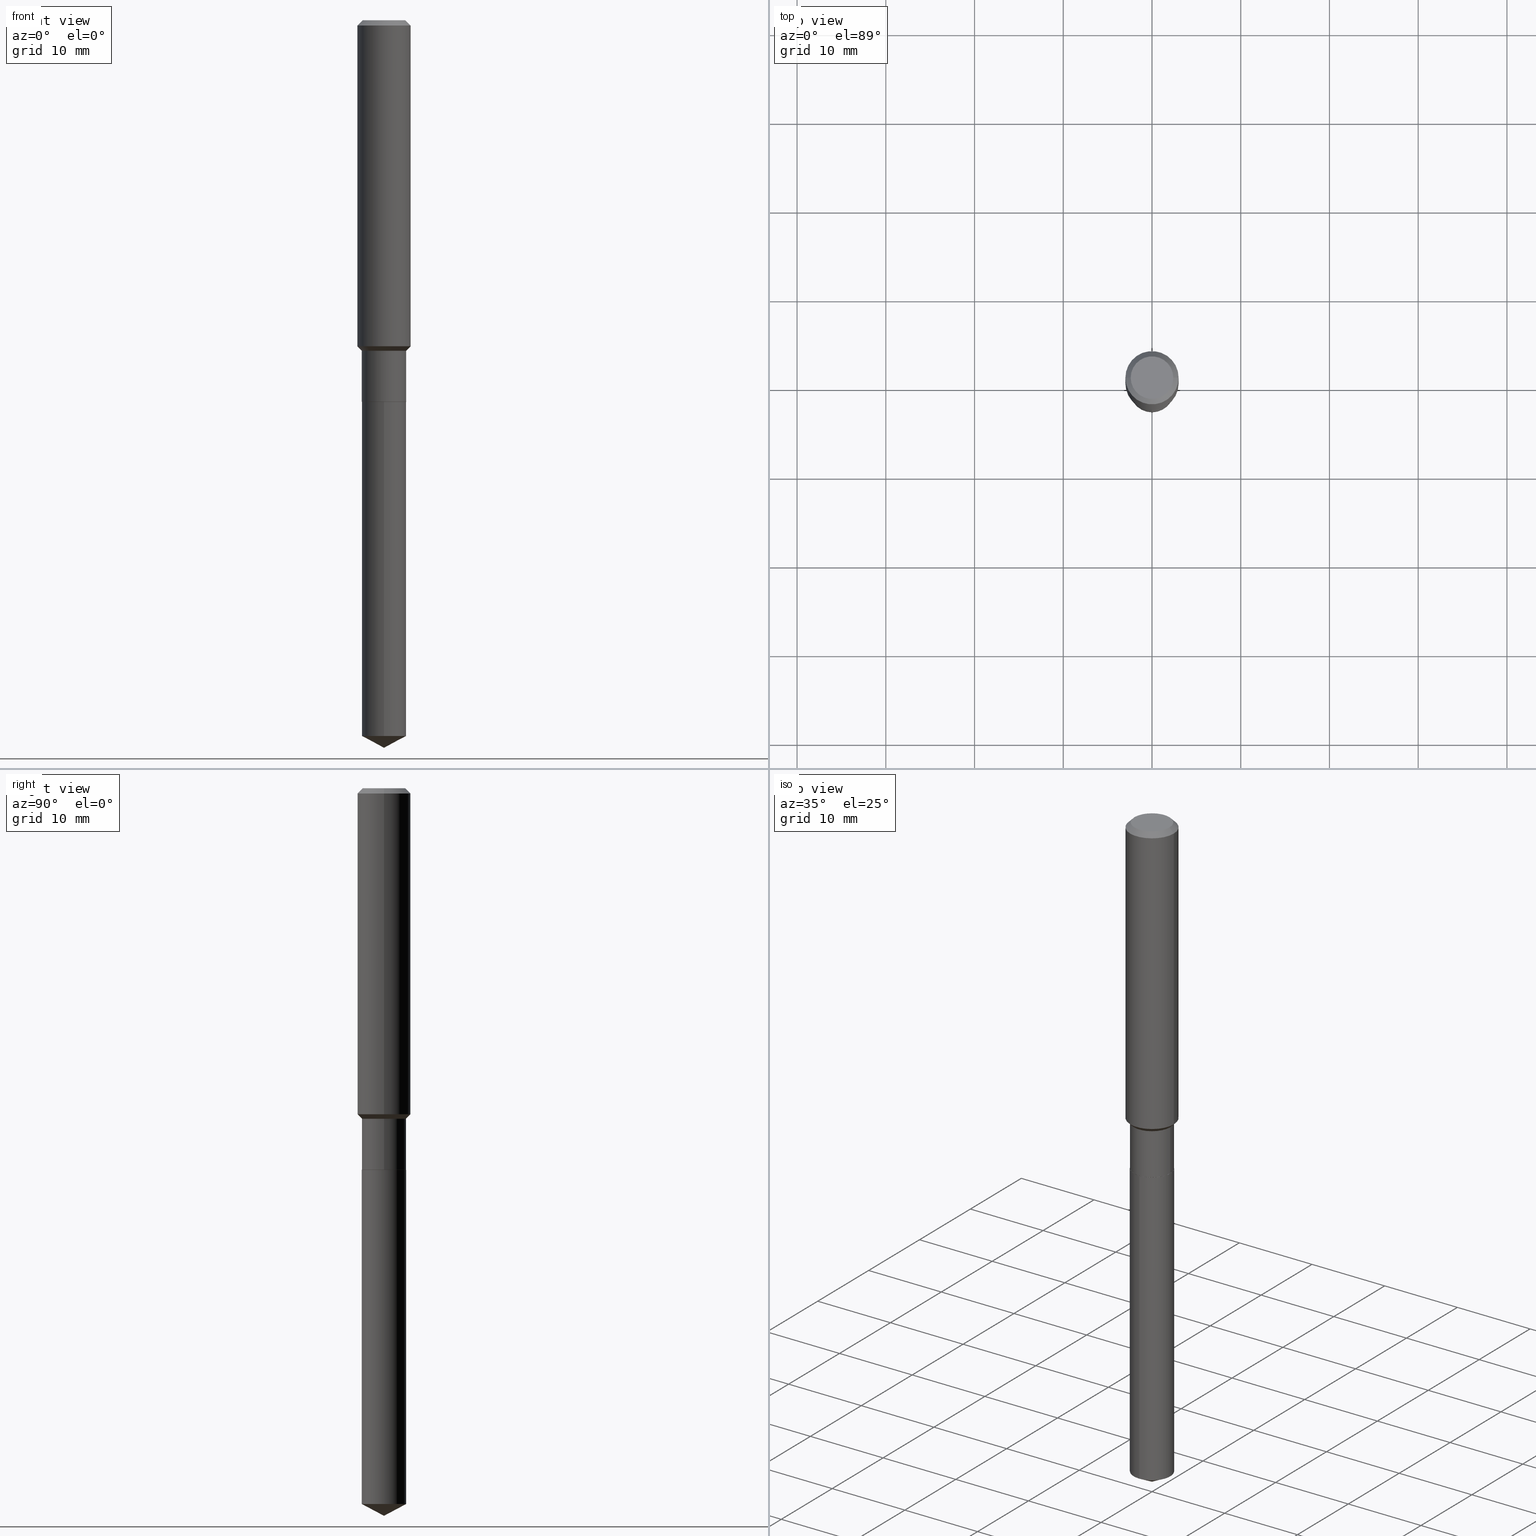
[diagram: canonical four-view strip — front | top / right | iso, engineering-drawing reading convention]
A machine part, canonical four-view strip (front | top / right | iso — engineering-drawing reading convention). The complete STEP part file that produces these views, byte-faithful:
ISO-10303-21;
HEADER;
FILE_DESCRIPTION (( 'STEP AP203' ),
    '1' );
FILE_NAME ('64820.STEP',
    '2024-04-24T19:01:01',
    ( '' ),
    ( '' ),
    'SwSTEP 2.0',
    'SolidWorks 2023',
    '' );
FILE_SCHEMA (( 'CONFIG_CONTROL_DESIGN' ));
ENDSEC;

DATA;
#1 = ORIENTED_EDGE ( 'NONE', *, *, #316, .F. ) ;
#2 = CARTESIAN_POINT ( 'NONE',  ( -6.874726756181714407E-16, -0.09845000000000590779, -1.692899999999999849 ) ) ;
#3 = CYLINDRICAL_SURFACE ( 'NONE', #181, 0.09844999999999999585 ) ;
#4 = AXIS2_PLACEMENT_3D ( 'NONE', #383, #44, #42 ) ;
#5 = ADVANCED_FACE ( 'NONE', ( #288 ), #129, .T. ) ;
#6 = ORIENTED_EDGE ( 'NONE', *, *, #11, .F. ) ;
#7 = COORDINATED_UNIVERSAL_TIME_OFFSET ( 5, 0, .BEHIND. ) ;
#8 = CARTESIAN_POINT ( 'NONE',  ( 7.894676668704987051E-29, -1.127159256643982906E-14, -3.228299999999999947 ) ) ;
#9 = PERSON_AND_ORGANIZATION ( #17, #479 ) ;
#10 = DIRECTION ( 'NONE',  ( -0.7071067811865484609, 7.493145998870357316E-15, 0.7071067811865465735 ) ) ;
#11 = EDGE_CURVE ( 'NONE', #194, #166, #454, .T. ) ;
#12 = DIRECTION ( 'NONE',  ( -6.982962677686265922E-15, -1.000000000000000000, 2.774858297271979165E-15 ) ) ;
#13 = AXIS2_PLACEMENT_3D ( 'NONE', #119, #342, #490 ) ;
#14 = CYLINDRICAL_SURFACE ( 'NONE', #368, 0.09844999999999998197 ) ;
#15 = ADVANCED_FACE ( 'NONE', ( #141 ), #229, .T. ) ;
#16 = EDGE_LOOP ( 'NONE', ( #392, #418, #430, #158 ) ) ;
#17 = PERSON ( 'UNSPECIFIED', 'UNSPECIFIED', 'UNSPECIFIED', ('UNSPECIFIED'), ('UNSPECIFIED'), ('UNSPECIFIED') ) ;
#18 = FACE_OUTER_BOUND ( 'NONE', #406, .T. ) ;
#19 = VERTEX_POINT ( 'NONE', #179 ) ;
#20 = CARTESIAN_POINT ( 'NONE',  ( 4.139934141990818357E-29, -5.910728758527561864E-15, -1.692900000000000071 ) ) ;
#21 = VERTEX_POINT ( 'NONE', #108 ) ;
#22 = CIRCLE ( 'NONE', #247, 0.09844999999999999585 ) ;
#23 = AXIS2_PLACEMENT_3D ( 'NONE', #419, #306, #451 ) ;
#24 = VECTOR ( 'NONE', #388, 39.37007874015748143 ) ;
#25 = DIRECTION ( 'NONE',  ( 1.000000000000000000, -6.982962677686269077E-15, 0.000000000000000000 ) ) ;
#26 = VERTEX_POINT ( 'NONE', #449 ) ;
#27 = CALENDAR_DATE ( 2024, 24, 4 ) ;
#28 = DIRECTION ( 'NONE',  ( -2.445468806185136597E-29, 3.491481338843145583E-15, 1.000000000000000000 ) ) ;
#29 =( LENGTH_UNIT ( ) NAMED_UNIT ( * ) SI_UNIT ( $, .METRE. ) );
#30 = EDGE_LOOP ( 'NONE', ( #136, #175, #6, #124 ) ) ;
#31 = CARTESIAN_POINT ( 'NONE',  ( -6.874726756181350545E-16, -0.09845000000001107032, -3.175953206452927002 ) ) ;
#32 = EDGE_LOOP ( 'NONE', ( #323, #361, #353, #171 ) ) ;
#33 = DIRECTION ( 'NONE',  ( -2.445468806185136597E-29, 3.491481338843145583E-15, 1.000000000000000000 ) ) ;
#34 = CARTESIAN_POINT ( 'NONE',  ( -8.838323765674841593E-28, 1.261888541926225739E-13, 36.14177874015747705 ) ) ;
#35 = DATE_AND_TIME ( #415, #309 ) ;
#36 = EDGE_LOOP ( 'NONE', ( #275, #130, #465, #101 ) ) ;
#37 = EDGE_CURVE ( 'NONE', #194, #151, #369, .T. ) ;
#38 = AXIS2_PLACEMENT_3D ( 'NONE', #104, #251, #106 ) ;
#39 = CIRCLE ( 'NONE', #351, 0.1181000000000001632 ) ;
#40 = DIRECTION ( 'NONE',  ( -2.445468806185136597E-29, 3.491481338843145583E-15, 1.000000000000000000 ) ) ;
#41 = APPROVAL_ROLE ( '' ) ;
#42 = DIRECTION ( 'NONE',  ( 1.000000000000000000, -6.982962677686266711E-15, 4.876176775795936353E-29 ) ) ;
#43 = EDGE_CURVE ( 'NONE', #480, #86, #253, .T. ) ;
#44 = DIRECTION ( 'NONE',  ( -2.445468806185136597E-29, 3.491481338843145583E-15, 1.000000000000000000 ) ) ;
#45 = LINE ( 'NONE', #150, #402 ) ;
#46 = VECTOR ( 'NONE', #139, 39.37007874015748143 ) ;
#47 = AXIS2_PLACEMENT_3D ( 'NONE', #59, #167, #208 ) ;
#48 = APPROVAL_STATUS ( 'not_yet_approved' ) ;
#49 = CARTESIAN_POINT ( 'NONE',  ( -0.09794999999999999540, -5.214752148850543863E-15, -1.692900000000000071 ) ) ;
#50 = CYLINDRICAL_SURFACE ( 'NONE', #478, 0.09844999999999998197 ) ;
#51 = CARTESIAN_POINT ( 'NONE',  ( 3.538226542228964985E-29, -5.051649775105204853E-15, -1.446849999999999969 ) ) ;
#52 = ORIENTED_EDGE ( 'NONE', *, *, #43, .F. ) ;
#53 = AXIS2_PLACEMENT_3D ( 'NONE', #355, #464, #210 ) ;
#54 = DIRECTION ( 'NONE',  ( -2.445468806185136597E-29, 3.491481338843145583E-15, 1.000000000000000000 ) ) ;
#55 = ORIENTED_EDGE ( 'NONE', *, *, #268, .F. ) ;
#56 = DIRECTION ( 'NONE',  ( -2.445468806185136597E-29, 3.491481338843145583E-15, 1.000000000000000000 ) ) ;
#57 = ORIENTED_EDGE ( 'NONE', *, *, #76, .T. ) ;
#58 = ADVANCED_FACE ( 'NONE', ( #258 ), #220, .F. ) ;
#59 = CARTESIAN_POINT ( 'NONE',  ( 2.358133508849003952E-46, -3.366789680499277518E-32, -9.642868896486260050E-18 ) ) ;
#60 = EDGE_LOOP ( 'NONE', ( #259, #241, #114 ) ) ;
#61 = CIRCLE ( 'NONE', #145, 0.09844999999999995421 ) ;
#62 = AXIS2_PLACEMENT_3D ( 'NONE', #71, #332, #188 ) ;
#63 = APPROVAL_ROLE ( '' ) ;
#64 = VERTEX_POINT ( 'NONE', #363 ) ;
#65 = EDGE_CURVE ( 'NONE', #166, #194, #22, .T. ) ;
#66 = ORIENTED_EDGE ( 'NONE', *, *, #341, .F. ) ;
#67 = COORDINATED_UNIVERSAL_TIME_OFFSET ( 5, 0, .BEHIND. ) ;
#68 = VERTEX_POINT ( 'NONE', #178 ) ;
#69 = CLOSED_SHELL ( 'NONE', ( #233, #5, #165, #444, #331 ) ) ;
#70 = CONICAL_SURFACE ( 'NONE', #204, 0.09844999999999995421, 0.7853981633974496113 ) ;
#71 = CARTESIAN_POINT ( 'NONE',  ( 0.000000000000000000, 0.000000000000000000, 0.000000000000000000 ) ) ;
#72 = CARTESIAN_POINT ( 'NONE',  ( -6.874726756181714407E-16, -0.09845000000000590779, -1.692899999999999849 ) ) ;
#73 = EDGE_CURVE ( 'NONE', #290, #403, #137, .T. ) ;
#74 = PERSON_AND_ORGANIZATION_ROLE ( 'creator' ) ;
#75 = ORIENTED_EDGE ( 'NONE', *, *, #316, .T. ) ;
#76 = EDGE_CURVE ( 'NONE', #480, #290, #485, .T. ) ;
#77 = PERSON_AND_ORGANIZATION ( #17, #479 ) ;
#78 = DIRECTION ( 'NONE',  ( 1.000000000000000000, -6.982962677686265922E-15, 4.876176775795935793E-29 ) ) ;
#79 = PERSON_AND_ORGANIZATION ( #17, #479 ) ;
#80 = CONICAL_SURFACE ( 'NONE', #386, 74.04434902938345431, 1.082104136236486047 ) ;
#81 = CC_DESIGN_SECURITY_CLASSIFICATION ( #199, ( #146 ) ) ;
#82 = FACE_OUTER_BOUND ( 'NONE', #356, .T. ) ;
#83 = EDGE_CURVE ( 'NONE', #68, #64, #317, .T. ) ;
#84 = EDGE_CURVE ( 'NONE', #26, #437, #447, .T. ) ;
#85 = CARTESIAN_POINT ( 'NONE',  ( -0.1181000000000000799, 8.391509709326788873E-16, -5.809262341591047988E-30 ) ) ;
#86 = VERTEX_POINT ( 'NONE', #2 ) ;
#87 = CYLINDRICAL_SURFACE ( 'NONE', #4, 0.1181000000000000799 ) ;
#88 = DIRECTION ( 'NONE',  ( -6.982962677686265922E-15, -1.000000000000000000, 2.774858297271979165E-15 ) ) ;
#89 = DIRECTION ( 'NONE',  ( 1.000000000000000000, -6.982962677686269077E-15, 0.000000000000000000 ) ) ;
#90 = CARTESIAN_POINT ( 'NONE',  ( 3.586280004270503451E-29, -5.120257383413473493E-15, -1.466500000000000137 ) ) ;
#91 = ORIENTED_EDGE ( 'NONE', *, *, #334, .T. ) ;
#92 = LINE ( 'NONE', #203, #248 ) ;
#93 = ORIENTED_EDGE ( 'NONE', *, *, #11, .T. ) ;
#94 = AXIS2_PLACEMENT_3D ( 'NONE', #231, #193, #339 ) ;
#95 = CARTESIAN_POINT ( 'NONE',  ( 0.1181000000000000799, -8.246878922347486570E-16, 5.758764772215004644E-30 ) ) ;
#96 = ORIENTED_EDGE ( 'NONE', *, *, #296, .T. ) ;
#97 = CARTESIAN_POINT ( 'NONE',  ( 5.776197320209327532E-31, -8.246878922347559293E-17, -0.02362000000000014088 ) ) ;
#98 = VERTEX_POINT ( 'NONE', #304 ) ;
#99 = CC_DESIGN_DATE_AND_TIME_ASSIGNMENT ( #486, #176, ( #470 ) ) ;
#100 =( NAMED_UNIT ( * ) PLANE_ANGLE_UNIT ( ) SI_UNIT ( $, .RADIAN. ) );
#101 = ORIENTED_EDGE ( 'NONE', *, *, #394, .F. ) ;
#102 = ADVANCED_FACE ( 'NONE', ( #228 ), #172, .T. ) ;
#103 = CIRCLE ( 'NONE', #163, 0.09844999999999999585 ) ;
#104 = CARTESIAN_POINT ( 'NONE',  ( 7.766680586692997852E-29, -1.108880127269587655E-14, -3.175953206452927891 ) ) ;
#105 =( NAMED_UNIT ( * ) SI_UNIT ( $, .STERADIAN. ) SOLID_ANGLE_UNIT ( ) );
#106 = DIRECTION ( 'NONE',  ( -6.982962677686265922E-15, -1.000000000000000000, 5.549716594543958330E-15 ) ) ;
#107 = PERSON_AND_ORGANIZATION ( #17, #479 ) ;
#108 = CARTESIAN_POINT ( 'NONE',  ( 0.09447999999999998066, -7.704367267948738690E-16, -1.928573779296752193E-17 ) ) ;
#109 = AXIS2_PLACEMENT_3D ( 'NONE', #365, #328, #217 ) ;
#110 = AXIS2_PLACEMENT_3D ( 'NONE', #399, #202, #360 ) ;
#111 = EDGE_CURVE ( 'NONE', #21, #98, #144, .T. ) ;
#112 = APPROVAL_STATUS ( 'not_yet_approved' ) ;
#113 = LOCAL_TIME ( 15, 1, 1.000000000000000000, #263 ) ;
#114 = ORIENTED_EDGE ( 'NONE', *, *, #462, .F. ) ;
#115 = ORIENTED_EDGE ( 'NONE', *, *, #76, .F. ) ;
#116 = FACE_OUTER_BOUND ( 'NONE', #60, .T. ) ;
#117 = PERSON_AND_ORGANIZATION_ROLE ( 'design_supplier' ) ;
#118 = CC_DESIGN_APPROVAL ( #424, ( #199 ) ) ;
#119 = CARTESIAN_POINT ( 'NONE',  ( 4.716267017698007905E-46, -6.733579360998555036E-32, -1.928573779297252010E-17 ) ) ;
#120 = CARTESIAN_POINT ( 'NONE',  ( -0.09844999999999999585, -4.815090877279988422E-15, -1.692400000000000126 ) ) ;
#121 = DIRECTION ( 'NONE',  ( 1.000000000000000000, -6.982962677686270655E-15, 0.000000000000000000 ) ) ;
#122 = DIRECTION ( 'NONE',  ( -2.445459427161350318E-29, 3.491494770139028640E-15, 1.000000000000000000 ) ) ;
#123 = CARTESIAN_POINT ( 'NONE',  ( 4.139934141990818357E-29, -5.910728758527561864E-15, -1.692900000000000071 ) ) ;
#124 = ORIENTED_EDGE ( 'NONE', *, *, #149, .F. ) ;
#125 = DIRECTION ( 'NONE',  ( 0.7071067811865459074, -7.319954787623249734E-15, -0.7071067811865491270 ) ) ;
#126 = VERTEX_POINT ( 'NONE', #153 ) ;
#127 = EDGE_CURVE ( 'NONE', #151, #400, #448, .T. ) ;
#128 = DIRECTION ( 'NONE',  ( 1.000000000000000000, -6.982962677686270655E-15, 0.000000000000000000 ) ) ;
#129 = CONICAL_SURFACE ( 'NONE', #180, 74.04434902938345431, 1.082104136236486047 ) ;
#130 = ORIENTED_EDGE ( 'NONE', *, *, #65, .T. ) ;
#131 = AXIS2_PLACEMENT_3D ( 'NONE', #133, #314, #12 ) ;
#132 = CONICAL_SURFACE ( 'NONE', #212, 0.09794999999999999540, 0.7853981633975507526 ) ;
#133 = CARTESIAN_POINT ( 'NONE',  ( 4.139934141990818357E-29, -5.910728758527561864E-15, -1.692900000000000071 ) ) ;
#134 = ORIENTED_EDGE ( 'NONE', *, *, #213, .F. ) ;
#135 = CARTESIAN_POINT ( 'NONE',  ( 3.586280004270503451E-29, -5.120257383413473493E-15, -1.466500000000000137 ) ) ;
#136 = ORIENTED_EDGE ( 'NONE', *, *, #389, .T. ) ;
#137 = LINE ( 'NONE', #442, #46 ) ;
#138 = VECTOR ( 'NONE', #272, 39.37007874015748143 ) ;
#139 = DIRECTION ( 'NONE',  ( -2.445459427161350599E-29, 3.491494770139028640E-15, 1.000000000000000000 ) ) ;
#140 = DIRECTION ( 'NONE',  ( -6.982962677686265922E-15, -1.000000000000000000, 2.774858297271979165E-15 ) ) ;
#141 = FACE_OUTER_BOUND ( 'NONE', #30, .T. ) ;
#142 = CARTESIAN_POINT ( 'NONE',  ( 4.139934141990818357E-29, -5.910728758527561864E-15, -1.692900000000000071 ) ) ;
#143 = DIRECTION ( 'NONE',  ( -2.445459427161350599E-29, 3.491494770139028640E-15, 1.000000000000000000 ) ) ;
#144 = CIRCLE ( 'NONE', #13, 0.09447999999999998066 ) ;
#145 = AXIS2_PLACEMENT_3D ( 'NONE', #90, #285, #25 ) ;
#146 = PRODUCT_DEFINITION_FORMATION_WITH_SPECIFIED_SOURCE ( 'ANY', '', #297, .NOT_KNOWN. ) ;
#147 = DIRECTION ( 'NONE',  ( -2.445459427161350318E-29, 3.491494770139028640E-15, 1.000000000000000000 ) ) ;
#148 = CARTESIAN_POINT ( 'NONE',  ( 4.139934141990818357E-29, -5.910728758527561864E-15, -1.692900000000000071 ) ) ;
#149 = EDGE_CURVE ( 'NONE', #64, #194, #45, .T. ) ;
#150 = CARTESIAN_POINT ( 'NONE',  ( 0.09794999999999999540, -6.594709952806931417E-15, -1.692900000000000071 ) ) ;
#151 = VERTEX_POINT ( 'NONE', #458 ) ;
#152 = DATE_TIME_ROLE ( 'classification_date' ) ;
#153 = CARTESIAN_POINT ( 'NONE',  ( 0.1181000000000001632, -5.876337667339954694E-15, -1.446849999999999969 ) ) ;
#154 = ADVANCED_FACE ( 'NONE', ( #82 ), #264, .T. ) ;
#155 = VECTOR ( 'NONE', #429, 39.37007874015748143 ) ;
#156 = APPROVAL_PERSON_ORGANIZATION ( #325, #291, #476 ) ;
#157 = LINE ( 'NONE', #49, #345 ) ;
#158 = ORIENTED_EDGE ( 'NONE', *, *, #65, .F. ) ;
#159 = CALENDAR_DATE ( 2024, 24, 4 ) ;
#160 = DIRECTION ( 'NONE',  ( -6.982962677686266711E-15, -1.000000000000000000, 3.541896320645564813E-15 ) ) ;
#161 = LINE ( 'NONE', #307, #138 ) ;
#162 = DIRECTION ( 'NONE',  ( -2.445468806185136597E-29, 3.491481338843145583E-15, 1.000000000000000000 ) ) ;
#163 = AXIS2_PLACEMENT_3D ( 'NONE', #216, #257, #214 ) ;
#164 = CARTESIAN_POINT ( 'NONE',  ( 0.000000000000000000, 0.000000000000000000, 0.000000000000000000 ) ) ;
#165 = ADVANCED_FACE ( 'NONE', ( #116 ), #80, .T. ) ;
#166 = VERTEX_POINT ( 'NONE', #120 ) ;
#167 = DIRECTION ( 'NONE',  ( 2.438088387897960049E-29, -3.491481338843145188E-15, -1.000000000000000000 ) ) ;
#168 = VERTEX_POINT ( 'NONE', #384 ) ;
#169 = CARTESIAN_POINT ( 'NONE',  ( 0.1180999999999999966, -8.926936027602933910E-16, -0.02362000000000014088 ) ) ;
#170 = AXIS2_PLACEMENT_3D ( 'NONE', #196, #40, #301 ) ;
#171 = ORIENTED_EDGE ( 'NONE', *, *, #84, .F. ) ;
#172 = CONICAL_SURFACE ( 'NONE', #94, 0.1180999999999999966, 0.7853981633974460586 ) ;
#173 = DIRECTION ( 'NONE',  ( 1.000000000000000000, -6.982962677686269077E-15, 0.000000000000000000 ) ) ;
#174 = CC_DESIGN_DATE_AND_TIME_ASSIGNMENT ( #300, #152, ( #199 ) ) ;
#175 = ORIENTED_EDGE ( 'NONE', *, *, #237, .T. ) ;
#176 = DATE_TIME_ROLE ( 'creation_date' ) ;
#177 = EDGE_CURVE ( 'NONE', #19, #480, #423, .T. ) ;
#178 = CARTESIAN_POINT ( 'NONE',  ( -0.09794999999999999540, -5.212102921676432662E-15, -1.692900000000000071 ) ) ;
#179 = CARTESIAN_POINT ( 'NONE',  ( 7.894676668704987051E-29, -1.127159256643982591E-14, -3.228299999999999947 ) ) ;
#180 = AXIS2_PLACEMENT_3D ( 'NONE', #34, #333, #482 ) ;
#181 = AXIS2_PLACEMENT_3D ( 'NONE', #200, #425, #88 ) ;
#182 = APPROVAL_PERSON_ORGANIZATION ( #107, #385, #63 ) ;
#183 = APPROVAL_DATE_TIME ( #35, #385 ) ;
#184 = ADVANCED_FACE ( 'NONE', ( #380 ), #87, .T. ) ;
#185 = ORIENTED_EDGE ( 'NONE', *, *, #393, .F. ) ;
#186 = UNCERTAINTY_MEASURE_WITH_UNIT (LENGTH_MEASURE( 1.000000000000000082E-05 ), #250, 'distance_accuracy_value', 'NONE');
#187 = ORIENTED_EDGE ( 'NONE', *, *, #73, .F. ) ;
#188 = DIRECTION ( 'NONE',  ( 1.000000000000000000, 0.000000000000000000, 0.000000000000000000 ) ) ;
#189 = DIRECTION ( 'NONE',  ( -2.445468806185136597E-29, 3.491481338843145583E-15, 1.000000000000000000 ) ) ;
#190 = CLOSED_SHELL ( 'NONE', ( #15, #102, #154, #265, #266, #373, #409, #184, #481, #302, #58, #474 ) ) ;
#191 = VECTOR ( 'NONE', #125, 39.37007874015748143 ) ;
#192 = CC_DESIGN_APPROVAL ( #385, ( #470 ) ) ;
#193 = DIRECTION ( 'NONE',  ( 2.445468806185136597E-29, -3.491481338843145583E-15, -1.000000000000000000 ) ) ;
#194 = VERTEX_POINT ( 'NONE', #197 ) ;
#195 = COORDINATED_UNIVERSAL_TIME_OFFSET ( 5, 0, .BEHIND. ) ;
#196 = CARTESIAN_POINT ( 'NONE',  ( 5.776197320209327532E-31, -8.246878922347559293E-17, -0.02362000000000014088 ) ) ;
#197 = CARTESIAN_POINT ( 'NONE',  ( 0.09844999999999999585, -6.596455693476352920E-15, -1.692400000000000126 ) ) ;
#198 = MANIFOLD_SOLID_BREP ( 'Body-Move/Copy2[2]', #190 ) ;
#199 = SECURITY_CLASSIFICATION ( '', '', #452 ) ;
#200 = CARTESIAN_POINT ( 'NONE',  ( 4.139934141990818357E-29, -5.910728758527561864E-15, -1.692900000000000071 ) ) ;
#201 = LINE ( 'NONE', #349, #280 ) ;
#202 = DIRECTION ( 'NONE',  ( -2.445468806185136597E-29, 3.491481338843145583E-15, 1.000000000000000000 ) ) ;
#203 = CARTESIAN_POINT ( 'NONE',  ( 0.09844999999999995421, -5.807730059031686053E-15, -1.466500000000000137 ) ) ;
#204 = AXIS2_PLACEMENT_3D ( 'NONE', #224, #377, #173 ) ;
#205 = ORIENTED_EDGE ( 'NONE', *, *, #462, .T. ) ;
#206 = DIRECTION ( 'NONE',  ( -2.445468806185136597E-29, 3.491481338843145583E-15, 1.000000000000000000 ) ) ;
#207 = EDGE_LOOP ( 'NONE', ( #396, #432, #115 ) ) ;
#208 = DIRECTION ( 'NONE',  ( -1.000000000000000000, 6.982962677686265922E-15, -4.876176775795935793E-29 ) ) ;
#209 = ORIENTED_EDGE ( 'NONE', *, *, #111, .T. ) ;
#210 = DIRECTION ( 'NONE',  ( 1.000000000000000000, -6.982962677686270655E-15, 0.000000000000000000 ) ) ;
#211 = ORIENTED_EDGE ( 'NONE', *, *, #252, .F. ) ;
#212 = AXIS2_PLACEMENT_3D ( 'NONE', #142, #33, #254 ) ;
#213 = EDGE_CURVE ( 'NONE', #168, #126, #39, .T. ) ;
#214 = DIRECTION ( 'NONE',  ( -6.982962677686265922E-15, -1.000000000000000000, 5.549716594543958330E-15 ) ) ;
#215 = ORIENTED_EDGE ( 'NONE', *, *, #252, .T. ) ;
#216 = CARTESIAN_POINT ( 'NONE',  ( 7.766680586692997852E-29, -1.108880127269587655E-14, -3.175953206452927891 ) ) ;
#217 = DIRECTION ( 'NONE',  ( 1.000000000000000000, -6.982962677686270655E-15, 0.000000000000000000 ) ) ;
#218 = EDGE_CURVE ( 'NONE', #168, #26, #270, .T. ) ;
#219 = ORIENTED_EDGE ( 'NONE', *, *, #389, .F. ) ;
#220 = PLANE ( 'NONE',  #411 ) ;
#221 = FACE_OUTER_BOUND ( 'NONE', #16, .T. ) ;
#222 = ORIENTED_EDGE ( 'NONE', *, *, #393, .T. ) ;
#223 = PERSON_AND_ORGANIZATION ( #17, #479 ) ;
#224 = CARTESIAN_POINT ( 'NONE',  ( 3.586280004270503451E-29, -5.120257383413473493E-15, -1.466500000000000137 ) ) ;
#225 = PERSON_AND_ORGANIZATION_ROLE ( 'classification_officer' ) ;
#226 = DIRECTION ( 'NONE',  ( -2.445468806185136597E-29, 3.491481338843145583E-15, 1.000000000000000000 ) ) ;
#227 = APPROVAL_DATE_TIME ( #417, #291 ) ;
#228 = FACE_OUTER_BOUND ( 'NONE', #245, .T. ) ;
#229 = CONICAL_SURFACE ( 'NONE', #344, 0.09794999999999999540, 0.7853981633975507526 ) ;
#230 = CIRCLE ( 'NONE', #459, 0.09844999999999999585 ) ;
#231 = CARTESIAN_POINT ( 'NONE',  ( 5.776197320209327532E-31, -8.246878922347559293E-17, -0.02362000000000014088 ) ) ;
#232 = CARTESIAN_POINT ( 'NONE',  ( 0.1180999999999999966, -9.071566814582237199E-16, -0.02362000000000014088 ) ) ;
#233 = ADVANCED_FACE ( 'NONE', ( #343 ), #3, .T. ) ;
#234 = FACE_OUTER_BOUND ( 'NONE', #278, .T. ) ;
#235 = ORIENTED_EDGE ( 'NONE', *, *, #218, .T. ) ;
#236 = APPLICATION_CONTEXT ( 'configuration controlled 3d designs of mechanical parts and assemblies' ) ;
#237 = EDGE_CURVE ( 'NONE', #68, #166, #157, .T. ) ;
#238 = VECTOR ( 'NONE', #143, 39.37007874015748143 ) ;
#239 = PLANE ( 'NONE',  #47 ) ;
#240 = VECTOR ( 'NONE', #405, 39.37007874015748143 ) ;
#241 = ORIENTED_EDGE ( 'NONE', *, *, #177, .T. ) ;
#242 = DIRECTION ( 'NONE',  ( 1.000000000000000000, -6.982962677686266711E-15, 4.876176775795935793E-29 ) ) ;
#243 = EDGE_LOOP ( 'NONE', ( #222, #209 ) ) ;
#244 = CARTESIAN_POINT ( 'NONE',  ( -0.1180999999999999966, 7.422191030112725094E-16, -0.02362000000000014088 ) ) ;
#245 = EDGE_LOOP ( 'NONE', ( #445, #315, #292, #472 ) ) ;
#246 = PERSON_AND_ORGANIZATION ( #17, #479 ) ;
#247 = AXIS2_PLACEMENT_3D ( 'NONE', #443, #28, #477 ) ;
#248 = VECTOR ( 'NONE', #390, 39.37007874015748143 ) ;
#249 = ORIENTED_EDGE ( 'NONE', *, *, #84, .T. ) ;
#250 =( CONVERSION_BASED_UNIT ( 'INCH', #438 ) LENGTH_UNIT ( ) NAMED_UNIT ( #277 ) );
#251 = DIRECTION ( 'NONE',  ( -2.445459427161350318E-29, 3.491494770139028640E-15, 1.000000000000000000 ) ) ;
#252 = EDGE_CURVE ( 'NONE', #400, #168, #201, .T. ) ;
#253 = LINE ( 'NONE', #72, #238 ) ;
#254 = DIRECTION ( 'NONE',  ( 1.000000000000000000, -6.982962677686270655E-15, 0.000000000000000000 ) ) ;
#255 = CARTESIAN_POINT ( 'NONE',  ( 0.09844999999999998197, -6.874726756182128559E-16, 4.800596035771097813E-30 ) ) ;
#256 = CIRCLE ( 'NONE', #53, 0.09794999999999999540 ) ;
#257 = DIRECTION ( 'NONE',  ( -2.445459427161350318E-29, 3.491494770139028640E-15, 1.000000000000000000 ) ) ;
#258 = FACE_OUTER_BOUND ( 'NONE', #284, .T. ) ;
#259 = ORIENTED_EDGE ( 'NONE', *, *, #466, .F. ) ;
#260 = EDGE_CURVE ( 'NONE', #166, #400, #161, .T. ) ;
#261 = CARTESIAN_POINT ( 'NONE',  ( -8.838323765674841593E-28, 1.261888541926225739E-13, 36.14177874015747705 ) ) ;
#262 = CIRCLE ( 'NONE', #378, 0.1180999999999999966 ) ;
#263 = COORDINATED_UNIVERSAL_TIME_OFFSET ( 5, 0, .BEHIND. ) ;
#264 = CYLINDRICAL_SURFACE ( 'NONE', #469, 0.1181000000000000799 ) ;
#265 = ADVANCED_FACE ( 'NONE', ( #428 ), #70, .T. ) ;
#266 = ADVANCED_FACE ( 'NONE', ( #234 ), #50, .T. ) ;
#267 = DIRECTION ( 'NONE',  ( -2.445468806185136597E-29, 3.491481338843145583E-15, 1.000000000000000000 ) ) ;
#268 = EDGE_CURVE ( 'NONE', #21, #437, #322, .T. ) ;
#269 = CALENDAR_DATE ( 2024, 24, 4 ) ;
#270 = LINE ( 'NONE', #85, #24 ) ;
#271 = AXIS2_PLACEMENT_3D ( 'NONE', #362, #147, #140 ) ;
#272 = DIRECTION ( 'NONE',  ( -2.445468806185136877E-29, 3.491481338843145188E-15, 1.000000000000000000 ) ) ;
#273 = CC_DESIGN_PERSON_AND_ORGANIZATION_ASSIGNMENT ( #9, #117, ( #146 ) ) ;
#274 = FACE_OUTER_BOUND ( 'NONE', #243, .T. ) ;
#275 = ORIENTED_EDGE ( 'NONE', *, *, #260, .F. ) ;
#276 = CARTESIAN_POINT ( 'NONE',  ( -0.09844999999999995421, -4.815090877279988422E-15, -1.466500000000000137 ) ) ;
#277 = DIMENSIONAL_EXPONENTS ( 1.000000000000000000, 0.000000000000000000, 0.000000000000000000, 0.000000000000000000, 0.000000000000000000, 0.000000000000000000, 0.000000000000000000 ) ;
#278 = EDGE_LOOP ( 'NONE', ( #93, #435, #416, #398 ) ) ;
#279 = DIRECTION ( 'NONE',  ( 1.000000000000000000, -6.982962677686266711E-15, 4.876176775795935793E-29 ) ) ;
#280 = VECTOR ( 'NONE', #10, 39.37007874015748143 ) ;
#281 = CC_DESIGN_PERSON_AND_ORGANIZATION_ASSIGNMENT ( #77, #225, ( #199 ) ) ;
#282 = ORIENTED_EDGE ( 'NONE', *, *, #296, .F. ) ;
#283 = DIRECTION ( 'NONE',  ( -2.445468806185136597E-29, 3.491481338843145583E-15, 1.000000000000000000 ) ) ;
#284 = EDGE_LOOP ( 'NONE', ( #219, #463 ) ) ;
#285 = DIRECTION ( 'NONE',  ( -2.445468806185136597E-29, 3.491481338843145583E-15, 1.000000000000000000 ) ) ;
#286 = ORIENTED_EDGE ( 'NONE', *, *, #127, .T. ) ;
#287 = APPROVAL_STATUS ( 'not_yet_approved' ) ;
#288 = FACE_OUTER_BOUND ( 'NONE', #207, .T. ) ;
#289 = APPLICATION_PROTOCOL_DEFINITION ( 'international standard', 'config_control_design', 1994, #404 ) ;
#290 = VERTEX_POINT ( 'NONE', #397 ) ;
#291 = APPROVAL ( #287, 'UNSPECIFIED' ) ;
#292 = ORIENTED_EDGE ( 'NONE', *, *, #354, .T. ) ;
#293 = CARTESIAN_POINT ( 'NONE',  ( 5.776197320209327532E-31, -8.246878922347559293E-17, -0.02362000000000014088 ) ) ;
#294 = CARTESIAN_POINT ( 'NONE',  ( 4.138711407587726116E-29, -5.908983017858140360E-15, -1.692400000000000126 ) ) ;
#295 = VECTOR ( 'NONE', #457, 39.37007874015748143 ) ;
#296 = EDGE_CURVE ( 'NONE', #403, #86, #337, .T. ) ;
#297 = PRODUCT ( '64820', '64820', '', ( #483 ) ) ;
#298 = DIRECTION ( 'NONE',  ( -2.438088387897960049E-29, 3.491481338843145188E-15, 1.000000000000000000 ) ) ;
#299 = DIRECTION ( 'NONE',  ( 1.000000000000000000, -6.982962677686266711E-15, 4.876176775795936353E-29 ) ) ;
#300 = DATE_AND_TIME ( #455, #441 ) ;
#301 = DIRECTION ( 'NONE',  ( 1.000000000000000000, -6.982962677686266711E-15, 0.000000000000000000 ) ) ;
#302 = ADVANCED_FACE ( 'NONE', ( #274 ), #239, .F. ) ;
#303 = AXIS2_PLACEMENT_3D ( 'NONE', #51, #54, #128 ) ;
#304 = CARTESIAN_POINT ( 'NONE',  ( -0.09447999999999998066, 7.009847083995354710E-16, -1.928573779297727792E-17 ) ) ;
#305 = SHAPE_DEFINITION_REPRESENTATION ( #375, #460 ) ;
#306 = DIRECTION ( 'NONE',  ( -2.445468806185136597E-29, 3.491481338843145583E-15, 1.000000000000000000 ) ) ;
#307 = CARTESIAN_POINT ( 'NONE',  ( -0.09844999999999998197, 6.995293233558185049E-16, -4.842691596355953341E-30 ) ) ;
#308 = CIRCLE ( 'NONE', #303, 0.1181000000000001632 ) ;
#309 = LOCAL_TIME ( 15, 1, 1.000000000000000000, #67 ) ;
#310 = FACE_OUTER_BOUND ( 'NONE', #439, .T. ) ;
#311 = EDGE_LOOP ( 'NONE', ( #286, #215, #468, #66 ) ) ;
#312 = LINE ( 'NONE', #244, #155 ) ;
#313 = ORIENTED_EDGE ( 'NONE', *, *, #324, .F. ) ;
#314 = DIRECTION ( 'NONE',  ( -2.445459427161350318E-29, 3.491494770139028640E-15, 1.000000000000000000 ) ) ;
#315 = ORIENTED_EDGE ( 'NONE', *, *, #268, .T. ) ;
#316 = EDGE_CURVE ( 'NONE', #86, #403, #230, .T. ) ;
#317 = CIRCLE ( 'NONE', #109, 0.09794999999999999540 ) ;
#318 = LINE ( 'NONE', #95, #412 ) ;
#319 = CIRCLE ( 'NONE', #110, 0.09447999999999998066 ) ;
#320 = LOCAL_TIME ( 15, 1, 1.000000000000000000, #335 ) ;
#321 = ORIENTED_EDGE ( 'NONE', *, *, #394, .T. ) ;
#322 = LINE ( 'NONE', #169, #191 ) ;
#323 = ORIENTED_EDGE ( 'NONE', *, *, #218, .F. ) ;
#324 = EDGE_CURVE ( 'NONE', #126, #437, #318, .T. ) ;
#325 = PERSON_AND_ORGANIZATION ( #17, #479 ) ;
#326 = ORIENTED_EDGE ( 'NONE', *, *, #73, .T. ) ;
#327 = CONICAL_SURFACE ( 'NONE', #487, 0.09844999999999995421, 0.7853981633974496113 ) ;
#328 = DIRECTION ( 'NONE',  ( -2.445468806185136597E-29, 3.491481338843145583E-15, 1.000000000000000000 ) ) ;
#329 = PERSON_AND_ORGANIZATION ( #17, #479 ) ;
#330 = EDGE_LOOP ( 'NONE', ( #57, #326, #1, #52 ) ) ;
#331 = ADVANCED_FACE ( 'NONE', ( #471 ), #467, .F. ) ;
#332 = DIRECTION ( 'NONE',  ( 0.000000000000000000, 0.000000000000000000, 1.000000000000000000 ) ) ;
#333 = DIRECTION ( 'NONE',  ( -2.445459427161350318E-29, 3.491494770139028640E-15, 1.000000000000000000 ) ) ;
#334 = EDGE_CURVE ( 'NONE', #126, #168, #308, .T. ) ;
#335 = COORDINATED_UNIVERSAL_TIME_OFFSET ( 5, 0, .BEHIND. ) ;
#336 = CARTESIAN_POINT ( 'NONE',  ( 4.139934141990818357E-29, -5.910728758527561864E-15, -1.692900000000000071 ) ) ;
#337 = CIRCLE ( 'NONE', #131, 0.09844999999999999585 ) ;
#338 = PERSON_AND_ORGANIZATION_ROLE ( 'creator' ) ;
#339 = DIRECTION ( 'NONE',  ( -1.000000000000000000, 6.982962677686266711E-15, 0.000000000000000000 ) ) ;
#340 = ORIENTED_EDGE ( 'NONE', *, *, #341, .T. ) ;
#341 = EDGE_CURVE ( 'NONE', #151, #126, #92, .T. ) ;
#342 = DIRECTION ( 'NONE',  ( -2.445468806185136597E-29, 3.491481338843145583E-15, 1.000000000000000000 ) ) ;
#343 = FACE_OUTER_BOUND ( 'NONE', #330, .T. ) ;
#344 = AXIS2_PLACEMENT_3D ( 'NONE', #336, #372, #489 ) ;
#345 = VECTOR ( 'NONE', #347, 39.37007874015748143 ) ;
#346 = APPROVAL_PERSON_ORGANIZATION ( #79, #424, #41 ) ;
#347 = DIRECTION ( 'NONE',  ( -0.7071067811866199593, 7.493145998870616062E-15, 0.7071067811864750752 ) ) ;
#348 = CC_DESIGN_PERSON_AND_ORGANIZATION_ASSIGNMENT ( #246, #367, ( #297 ) ) ;
#349 = CARTESIAN_POINT ( 'NONE',  ( -0.09844999999999995421, -4.420728060057654594E-15, -1.466500000000000137 ) ) ;
#350 = CARTESIAN_POINT ( 'NONE',  ( 6.995293233558962077E-16, 0.09844999999999408391, -1.692900000000000293 ) ) ;
#351 = AXIS2_PLACEMENT_3D ( 'NONE', #421, #267, #121 ) ;
#352 = DIRECTION ( 'NONE',  ( 2.445459427161349758E-29, -3.491494770139028640E-15, -1.000000000000000000 ) ) ;
#353 = ORIENTED_EDGE ( 'NONE', *, *, #324, .T. ) ;
#354 = EDGE_CURVE ( 'NONE', #437, #26, #262, .T. ) ;
#355 = CARTESIAN_POINT ( 'NONE',  ( 4.139934141990818357E-29, -5.910728758527561864E-15, -1.692900000000000071 ) ) ;
#356 = EDGE_LOOP ( 'NONE', ( #91, #235, #374, #313 ) ) ;
#357 = MANIFOLD_SOLID_BREP ( 'Body-Move/Copy2[1]', #69 ) ;
#358 = DIRECTION ( 'NONE',  ( -6.982962677686265922E-15, -1.000000000000000000, 2.774858297271979165E-15 ) ) ;
#359 = EDGE_LOOP ( 'NONE', ( #75, #96 ) ) ;
#360 = DIRECTION ( 'NONE',  ( 1.000000000000000000, -6.982962677686267499E-15, 4.875432709231658792E-29 ) ) ;
#361 = ORIENTED_EDGE ( 'NONE', *, *, #213, .T. ) ;
#362 = CARTESIAN_POINT ( 'NONE',  ( 4.139934141990818357E-29, -5.910728758527561864E-15, -1.692900000000000071 ) ) ;
#363 = CARTESIAN_POINT ( 'NONE',  ( 0.09794999999999999540, -6.594709952806931417E-15, -1.692900000000000071 ) ) ;
#364 = LINE ( 'NONE', #440, #240 ) ;
#365 = CARTESIAN_POINT ( 'NONE',  ( 4.139934141990818357E-29, -5.910728758527561864E-15, -1.692900000000000071 ) ) ;
#366 = CC_DESIGN_PERSON_AND_ORGANIZATION_ASSIGNMENT ( #223, #338, ( #146 ) ) ;
#367 = PERSON_AND_ORGANIZATION_ROLE ( 'design_owner' ) ;
#368 = AXIS2_PLACEMENT_3D ( 'NONE', #164, #206, #279 ) ;
#369 = LINE ( 'NONE', #255, #426 ) ;
#370 = AXIS2_PLACEMENT_3D ( 'NONE', #293, #446, #371 ) ;
#371 = DIRECTION ( 'NONE',  ( -1.000000000000000000, 6.982962677686266711E-15, 0.000000000000000000 ) ) ;
#372 = DIRECTION ( 'NONE',  ( -2.445468806185136597E-29, 3.491481338843145583E-15, 1.000000000000000000 ) ) ;
#373 = ADVANCED_FACE ( 'NONE', ( #395 ), #14, .T. ) ;
#374 = ORIENTED_EDGE ( 'NONE', *, *, #354, .F. ) ;
#375 = PRODUCT_DEFINITION_SHAPE ( 'NONE', 'NONE',  #470 ) ;
#376 = PRODUCT_RELATED_PRODUCT_CATEGORY ( 'detail', '', ( #297 ) ) ;
#377 = DIRECTION ( 'NONE',  ( -2.445468806185136597E-29, 3.491481338843145583E-15, 1.000000000000000000 ) ) ;
#378 = AXIS2_PLACEMENT_3D ( 'NONE', #97, #283, #436 ) ;
#379 = CONICAL_SURFACE ( 'NONE', #370, 0.1180999999999999966, 0.7853981633974460586 ) ;
#380 = FACE_OUTER_BOUND ( 'NONE', #32, .T. ) ;
#381 = APPROVAL_DATE_TIME ( #387, #424 ) ;
#382 = EDGE_CURVE ( 'NONE', #98, #26, #312, .T. ) ;
#383 = CARTESIAN_POINT ( 'NONE',  ( 0.000000000000000000, 0.000000000000000000, 0.000000000000000000 ) ) ;
#384 = CARTESIAN_POINT ( 'NONE',  ( -0.1181000000000001632, -4.212498804172525078E-15, -1.446849999999999969 ) ) ;
#385 = APPROVAL ( #112, 'UNSPECIFIED' ) ;
#386 = AXIS2_PLACEMENT_3D ( 'NONE', #261, #122, #160 ) ;
#387 = DATE_AND_TIME ( #269, #113 ) ;
#388 = DIRECTION ( 'NONE',  ( -2.445468806185136877E-29, 3.491481338843145188E-15, 1.000000000000000000 ) ) ;
#389 = EDGE_CURVE ( 'NONE', #64, #68, #256, .T. ) ;
#390 = DIRECTION ( 'NONE',  ( 0.7071067811865484609, -2.468850131082266921E-15, 0.7071067811865465735 ) ) ;
#391 = CARTESIAN_POINT ( 'NONE',  ( 0.000000000000000000, 0.000000000000000000, 0.000000000000000000 ) ) ;
#392 = ORIENTED_EDGE ( 'NONE', *, *, #237, .F. ) ;
#393 = EDGE_CURVE ( 'NONE', #98, #21, #319, .T. ) ;
#394 = EDGE_CURVE ( 'NONE', #400, #151, #61, .T. ) ;
#395 = FACE_OUTER_BOUND ( 'NONE', #36, .T. ) ;
#396 = ORIENTED_EDGE ( 'NONE', *, *, #177, .F. ) ;
#397 = CARTESIAN_POINT ( 'NONE',  ( 6.995293233558961091E-16, 0.09844999999998889362, -3.175953206452928335 ) ) ;
#398 = ORIENTED_EDGE ( 'NONE', *, *, #37, .F. ) ;
#399 = CARTESIAN_POINT ( 'NONE',  ( 4.716267017698007905E-46, -6.733579360998555036E-32, -1.928573779297252010E-17 ) ) ;
#400 = VERTEX_POINT ( 'NONE', #276 ) ;
#401 = AXIS2_PLACEMENT_3D ( 'NONE', #294, #189, #408 ) ;
#402 = VECTOR ( 'NONE', #453, 39.37007874015748143 ) ;
#403 = VERTEX_POINT ( 'NONE', #350 ) ;
#404 = APPLICATION_CONTEXT ( 'configuration controlled 3d designs of mechanical parts and assemblies' ) ;
#405 = DIRECTION ( 'NONE',  ( 6.273719981627762921E-15, 0.8829475928589293199, 0.4694715627858860874 ) ) ;
#406 = EDGE_LOOP ( 'NONE', ( #211, #321, #340, #134 ) ) ;
#407 = APPLICATION_PROTOCOL_DEFINITION ( 'international standard', 'config_control_design', 1994, #236 ) ;
#408 = DIRECTION ( 'NONE',  ( 1.000000000000000000, -6.982962677686265922E-15, 0.000000000000000000 ) ) ;
#409 = ADVANCED_FACE ( 'NONE', ( #18 ), #327, .T. ) ;
#410 = FACE_OUTER_BOUND ( 'NONE', #413, .T. ) ;
#411 = AXIS2_PLACEMENT_3D ( 'NONE', #148, #298, #78 ) ;
#412 = VECTOR ( 'NONE', #434, 39.37007874015748143 ) ;
#413 = EDGE_LOOP ( 'NONE', ( #55, #185, #475, #249 ) ) ;
#414 = CC_DESIGN_APPROVAL ( #291, ( #146 ) ) ;
#415 = CALENDAR_DATE ( 2024, 24, 4 ) ;
#416 = ORIENTED_EDGE ( 'NONE', *, *, #127, .F. ) ;
#417 = DATE_AND_TIME ( #159, #433 ) ;
#418 = ORIENTED_EDGE ( 'NONE', *, *, #83, .T. ) ;
#419 = CARTESIAN_POINT ( 'NONE',  ( 3.586280004270503451E-29, -5.120257383413473493E-15, -1.466500000000000137 ) ) ;
#420 =( GEOMETRIC_REPRESENTATION_CONTEXT ( 3 ) GLOBAL_UNCERTAINTY_ASSIGNED_CONTEXT ( ( #186 ) ) GLOBAL_UNIT_ASSIGNED_CONTEXT ( ( #250, #100, #105 ) ) REPRESENTATION_CONTEXT ( 'NONE', 'WORKASPACE' ) );
#421 = CARTESIAN_POINT ( 'NONE',  ( 3.538226542228964985E-29, -5.051649775105204853E-15, -1.446849999999999969 ) ) ;
#422 = DESIGN_CONTEXT ( 'detailed design', #236, 'design' ) ;
#423 = LINE ( 'NONE', #8, #295 ) ;
#424 = APPROVAL ( #48, 'UNSPECIFIED' ) ;
#425 = DIRECTION ( 'NONE',  ( -2.445459427161350318E-29, 3.491494770139028640E-15, 1.000000000000000000 ) ) ;
#426 = VECTOR ( 'NONE', #484, 39.37007874015748143 ) ;
#427 = AXIS2_PLACEMENT_3D ( 'NONE', #123, #352, #473 ) ;
#428 = FACE_OUTER_BOUND ( 'NONE', #311, .T. ) ;
#429 = DIRECTION ( 'NONE',  ( -0.7071067811865459074, 2.468850131082240100E-15, -0.7071067811865491270 ) ) ;
#430 = ORIENTED_EDGE ( 'NONE', *, *, #149, .T. ) ;
#431 = DIRECTION ( 'NONE',  ( -2.445459427161350318E-29, 3.491494770139028640E-15, 1.000000000000000000 ) ) ;
#432 = ORIENTED_EDGE ( 'NONE', *, *, #466, .T. ) ;
#433 = LOCAL_TIME ( 15, 1, 1.000000000000000000, #7 ) ;
#434 = DIRECTION ( 'NONE',  ( -2.445468806185136877E-29, 3.491481338843145188E-15, 1.000000000000000000 ) ) ;
#435 = ORIENTED_EDGE ( 'NONE', *, *, #260, .T. ) ;
#436 = DIRECTION ( 'NONE',  ( 1.000000000000000000, -6.982962677686266711E-15, 0.000000000000000000 ) ) ;
#437 = VERTEX_POINT ( 'NONE', #232 ) ;
#438 = LENGTH_MEASURE_WITH_UNIT ( LENGTH_MEASURE( 0.02539999999999999897 ), #29 );
#439 = EDGE_LOOP ( 'NONE', ( #187, #205, #450, #282 ) ) ;
#440 = CARTESIAN_POINT ( 'NONE',  ( 7.894708702661963165E-29, -1.127154709075822593E-14, -3.228299999999999947 ) ) ;
#441 = LOCAL_TIME ( 15, 1, 1.000000000000000000, #195 ) ;
#442 = CARTESIAN_POINT ( 'NONE',  ( 6.995293233558598215E-16, 0.09844999999999408391, -1.692900000000000293 ) ) ;
#443 = CARTESIAN_POINT ( 'NONE',  ( 4.138711407587726116E-29, -5.908983017858140360E-15, -1.692400000000000126 ) ) ;
#444 = ADVANCED_FACE ( 'NONE', ( #310 ), #461, .T. ) ;
#445 = ORIENTED_EDGE ( 'NONE', *, *, #111, .F. ) ;
#446 = DIRECTION ( 'NONE',  ( 2.445468806185136597E-29, -3.491481338843145583E-15, -1.000000000000000000 ) ) ;
#447 = CIRCLE ( 'NONE', #170, 0.1180999999999999966 ) ;
#448 = CIRCLE ( 'NONE', #23, 0.09844999999999995421 ) ;
#449 = CARTESIAN_POINT ( 'NONE',  ( -0.1180999999999999966, -1.727908311231660578E-15, -0.02362000000000014088 ) ) ;
#450 = ORIENTED_EDGE ( 'NONE', *, *, #43, .T. ) ;
#451 = DIRECTION ( 'NONE',  ( 1.000000000000000000, -6.982962677686269077E-15, 0.000000000000000000 ) ) ;
#452 = SECURITY_CLASSIFICATION_LEVEL ( 'unclassified' ) ;
#453 = DIRECTION ( 'NONE',  ( 0.7071067811866199593, -2.468850131083015945E-15, 0.7071067811864750752 ) ) ;
#454 = CIRCLE ( 'NONE', #401, 0.09844999999999999585 ) ;
#455 = CALENDAR_DATE ( 2024, 24, 4 ) ;
#456 = CARTESIAN_POINT ( 'NONE',  ( 0.000000000000000000, 0.000000000000000000, 0.000000000000000000 ) ) ;
#457 = DIRECTION ( 'NONE',  ( -6.165590087286832085E-15, -0.8829475928589261002, 0.4694715627858923601 ) ) ;
#458 = CARTESIAN_POINT ( 'NONE',  ( 0.09844999999999995421, -5.807730059031686053E-15, -1.466500000000000137 ) ) ;
#459 = AXIS2_PLACEMENT_3D ( 'NONE', #20, #431, #358 ) ;
#460 = ADVANCED_BREP_SHAPE_REPRESENTATION ( '64820', ( #357, #198, #62 ), #420 ) ;
#461 = CYLINDRICAL_SURFACE ( 'NONE', #271, 0.09844999999999999585 ) ;
#462 = EDGE_CURVE ( 'NONE', #290, #480, #103, .T. ) ;
#463 = ORIENTED_EDGE ( 'NONE', *, *, #83, .F. ) ;
#464 = DIRECTION ( 'NONE',  ( -2.445468806185136597E-29, 3.491481338843145583E-15, 1.000000000000000000 ) ) ;
#465 = ORIENTED_EDGE ( 'NONE', *, *, #37, .T. ) ;
#466 = EDGE_CURVE ( 'NONE', #19, #290, #364, .T. ) ;
#467 = PLANE ( 'NONE',  #427 ) ;
#468 = ORIENTED_EDGE ( 'NONE', *, *, #334, .F. ) ;
#469 = AXIS2_PLACEMENT_3D ( 'NONE', #456, #226, #299 ) ;
#470 = PRODUCT_DEFINITION ( 'UNKNOWN', '', #146, #422 ) ;
#471 = FACE_OUTER_BOUND ( 'NONE', #359, .T. ) ;
#472 = ORIENTED_EDGE ( 'NONE', *, *, #382, .F. ) ;
#473 = DIRECTION ( 'NONE',  ( 6.982962677686265922E-15, 1.000000000000000000, -3.491494770139028640E-15 ) ) ;
#474 = ADVANCED_FACE ( 'NONE', ( #221 ), #132, .T. ) ;
#475 = ORIENTED_EDGE ( 'NONE', *, *, #382, .T. ) ;
#476 = APPROVAL_ROLE ( '' ) ;
#477 = DIRECTION ( 'NONE',  ( 1.000000000000000000, -6.982962677686265922E-15, 0.000000000000000000 ) ) ;
#478 = AXIS2_PLACEMENT_3D ( 'NONE', #391, #56, #242 ) ;
#479 = ORGANIZATION ( 'UNSPECIFIED', 'UNSPECIFIED', '' ) ;
#480 = VERTEX_POINT ( 'NONE', #31 ) ;
#481 = ADVANCED_FACE ( 'NONE', ( #410 ), #379, .T. ) ;
#482 = DIRECTION ( 'NONE',  ( -6.982962677686266711E-15, -1.000000000000000000, 3.541896320645564813E-15 ) ) ;
#483 = MECHANICAL_CONTEXT ( 'NONE', #404, 'mechanical' ) ;
#484 = DIRECTION ( 'NONE',  ( -2.445468806185136877E-29, 3.491481338843145188E-15, 1.000000000000000000 ) ) ;
#485 = CIRCLE ( 'NONE', #38, 0.09844999999999999585 ) ;
#486 = DATE_AND_TIME ( #27, #320 ) ;
#487 = AXIS2_PLACEMENT_3D ( 'NONE', #135, #162, #89 ) ;
#488 = CC_DESIGN_PERSON_AND_ORGANIZATION_ASSIGNMENT ( #329, #74, ( #470 ) ) ;
#489 = DIRECTION ( 'NONE',  ( 1.000000000000000000, -6.982962677686270655E-15, 0.000000000000000000 ) ) ;
#490 = DIRECTION ( 'NONE',  ( 1.000000000000000000, -6.982962677686267499E-15, 4.875432709231658792E-29 ) ) ;
ENDSEC;
END-ISO-10303-21;
